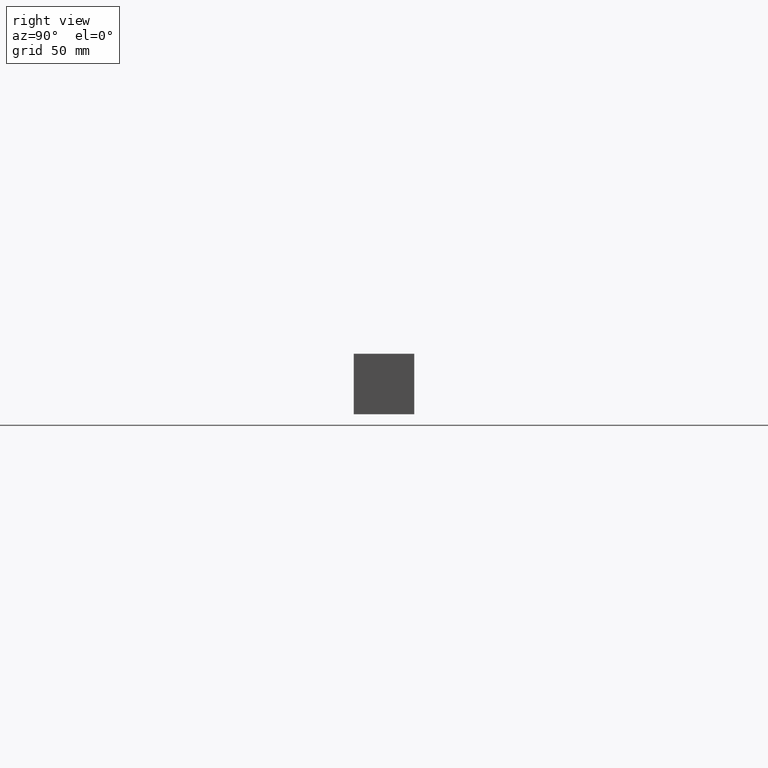
[diagram: clean part render]
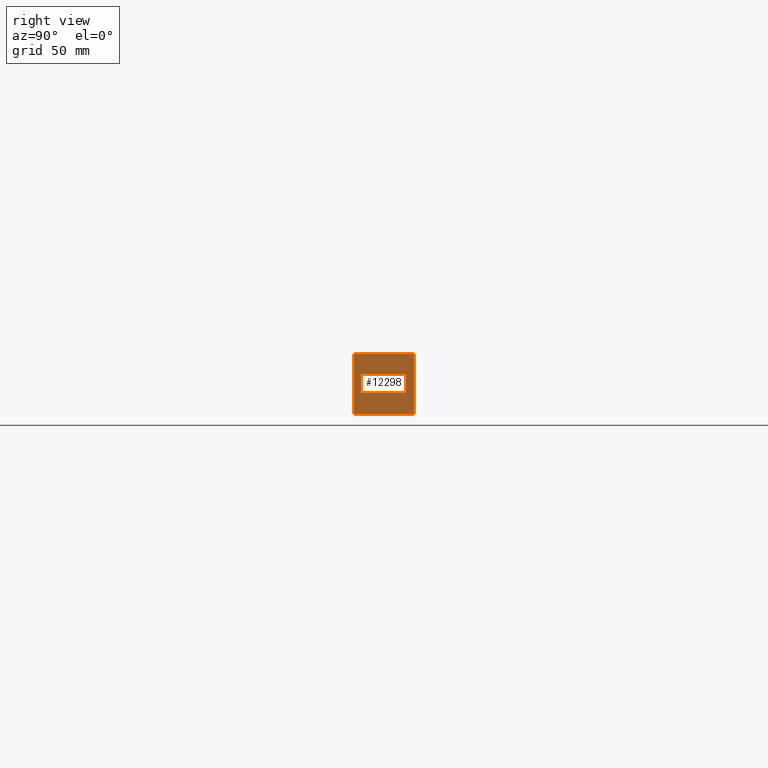
[diagram: same view with one face highlighted and labeled with its STEP entity id]
A machine part, right view. The second image highlights one B-rep face of the part: STEP entity #12298.
In plain terms, the highlighted planar face has unit normal (1, 0, 0).
Its self-contained STEP definition (entity closure, byte-faithful):
#2139=FACE_OUTER_BOUND('',#2908,.T.);
#2908=EDGE_LOOP('',(#11009,#11010,#11011,#11012));
#3189=LINE('',#18911,#4020);
#3765=LINE('',#22076,#4596);
#3766=LINE('',#22079,#4597);
#3767=LINE('',#22080,#4598);
#4020=VECTOR('',#13949,10.);
#4596=VECTOR('',#16887,10.);
#4597=VECTOR('',#16890,10.);
#4598=VECTOR('',#16891,10.);
#4885=VERTEX_POINT('',#18908);
#4886=VERTEX_POINT('',#18910);
#5770=VERTEX_POINT('',#22074);
#5771=VERTEX_POINT('',#22078);
#6199=EDGE_CURVE('',#4885,#4886,#3189,.T.);
#7535=EDGE_CURVE('',#5770,#4886,#3765,.T.);
#7536=EDGE_CURVE('',#5771,#5770,#3766,.T.);
#7537=EDGE_CURVE('',#5771,#4885,#3767,.T.);
#11009=ORIENTED_EDGE('',*,*,#7536,.T.);
#11010=ORIENTED_EDGE('',*,*,#7535,.T.);
#11011=ORIENTED_EDGE('',*,*,#6199,.F.);
#11012=ORIENTED_EDGE('',*,*,#7537,.F.);
#11338=PLANE('',#13562);
#12298=ADVANCED_FACE('',(#2139),#11338,.T.);
#13562=AXIS2_PLACEMENT_3D('',#22077,#16888,#16889);
#13949=DIRECTION('',(0.,1.,0.));
#16887=DIRECTION('',(0.,0.,1.));
#16888=DIRECTION('center_axis',(1.,0.,0.));
#16889=DIRECTION('ref_axis',(0.,1.,0.));
#16890=DIRECTION('',(0.,1.,0.));
#16891=DIRECTION('',(0.,0.,1.));
#18908=CARTESIAN_POINT('',(533.4,0.,44.45));
#18910=CARTESIAN_POINT('',(533.4,44.45,44.45));
#18911=CARTESIAN_POINT('',(533.4,0.,44.45));
#22074=CARTESIAN_POINT('',(533.4,44.45,0.));
#22076=CARTESIAN_POINT('',(533.4,44.45,0.));
#22077=CARTESIAN_POINT('Origin',(533.4,0.,0.));
#22078=CARTESIAN_POINT('',(533.4,0.,0.));
#22079=CARTESIAN_POINT('',(533.4,0.,0.));
#22080=CARTESIAN_POINT('',(533.4,0.,0.));